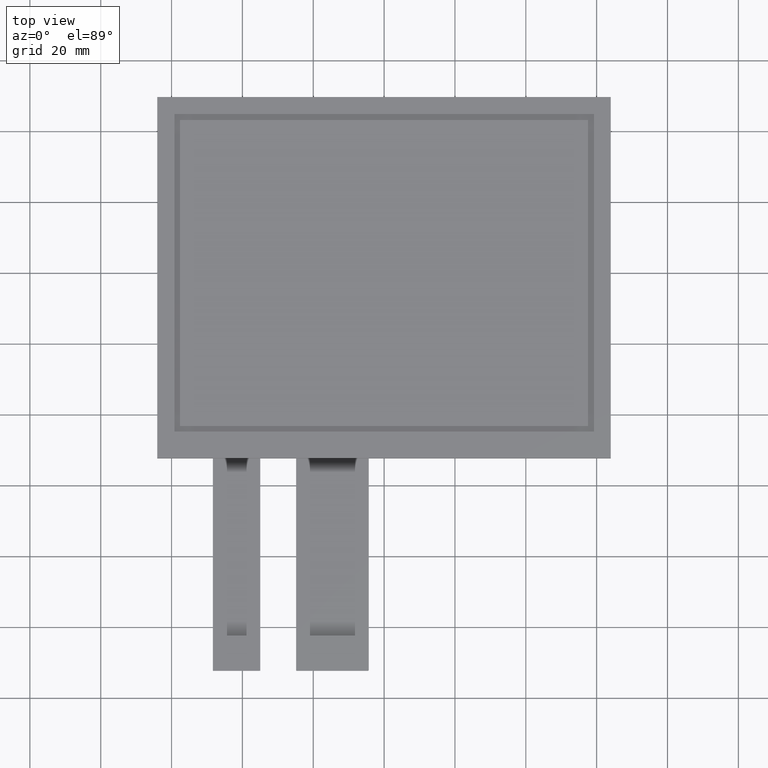
[diagram: clean part render]
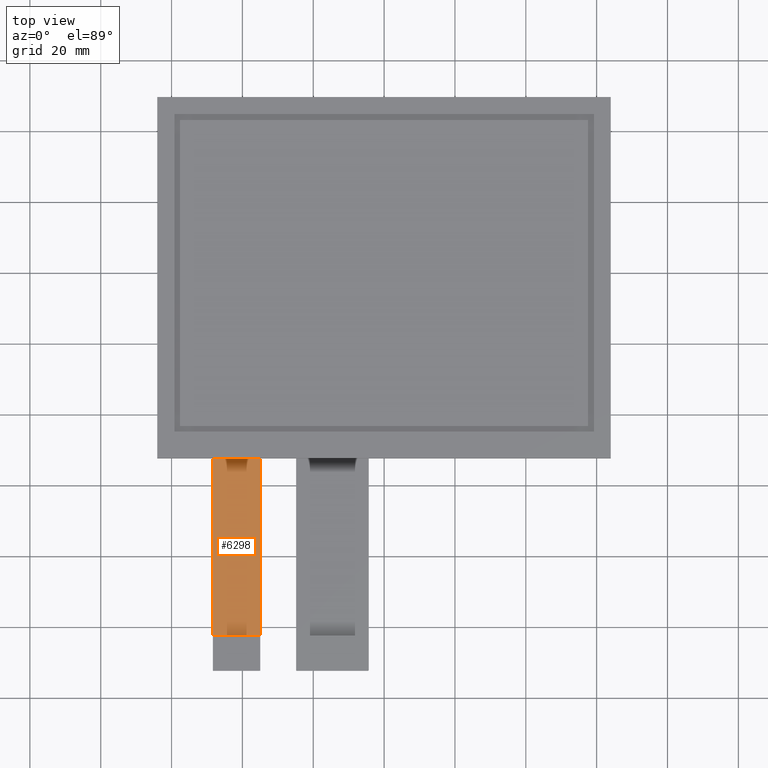
[diagram: same view with one face highlighted and labeled with its STEP entity id]
A machine part, top view. The second image highlights one B-rep face of the part: STEP entity #6298.
In plain terms, the highlighted planar face has unit normal (0, 0, 1).
Its self-contained STEP definition (entity closure, byte-faithful):
#360=PLANE('',#6628);
#662=FACE_OUTER_BOUND('',#964,.T.);
#964=EDGE_LOOP('',(#5925,#5926,#5927,#5928));
#1803=LINE('',#9804,#2683);
#1817=LINE('',#9832,#2697);
#1827=LINE('',#9851,#2707);
#1828=LINE('',#9853,#2708);
#2683=VECTOR('',#8031,10.);
#2697=VECTOR('',#8055,10.);
#2707=VECTOR('',#8075,10.);
#2708=VECTOR('',#8078,10.);
#3306=VERTEX_POINT('',#9801);
#3307=VERTEX_POINT('',#9803);
#3316=VERTEX_POINT('',#9831);
#3320=VERTEX_POINT('',#9849);
#4171=EDGE_CURVE('',#3307,#3306,#1803,.T.);
#4185=EDGE_CURVE('',#3306,#3316,#1817,.T.);
#4195=EDGE_CURVE('',#3316,#3320,#1827,.T.);
#4196=EDGE_CURVE('',#3307,#3320,#1828,.T.);
#5925=ORIENTED_EDGE('',*,*,#4185,.T.);
#5926=ORIENTED_EDGE('',*,*,#4195,.T.);
#5927=ORIENTED_EDGE('',*,*,#4196,.F.);
#5928=ORIENTED_EDGE('',*,*,#4171,.T.);
#6298=ADVANCED_FACE('',(#662),#360,.T.);
#6628=AXIS2_PLACEMENT_3D('',#9852,#8076,#8077);
#8031=DIRECTION('',(2.96059473233375E-16,-1.,0.));
#8055=DIRECTION('',(1.,0.,0.));
#8075=DIRECTION('',(-2.22044604925031E-16,1.,0.));
#8076=DIRECTION('center_axis',(0.,0.,1.));
#8077=DIRECTION('ref_axis',(1.,0.,0.));
#8078=DIRECTION('',(1.,6.93889390390723E-17,0.));
#9801=CARTESIAN_POINT('',(-48.35,-102.31,-1.1));
#9803=CARTESIAN_POINT('',(-48.35,-52.31,-1.1));
#9804=CARTESIAN_POINT('',(-48.35,-52.31,-1.1));
#9831=CARTESIAN_POINT('',(-34.95,-102.31,-1.1));
#9832=CARTESIAN_POINT('',(-38.3,-102.31,-1.1));
#9849=CARTESIAN_POINT('',(-34.95,-52.31,-1.1));
#9851=CARTESIAN_POINT('',(-34.95,-112.31,-1.1));
#9852=CARTESIAN_POINT('Origin',(-41.65,-82.31,-1.1));
#9853=CARTESIAN_POINT('',(11.16,-52.31,-1.1));